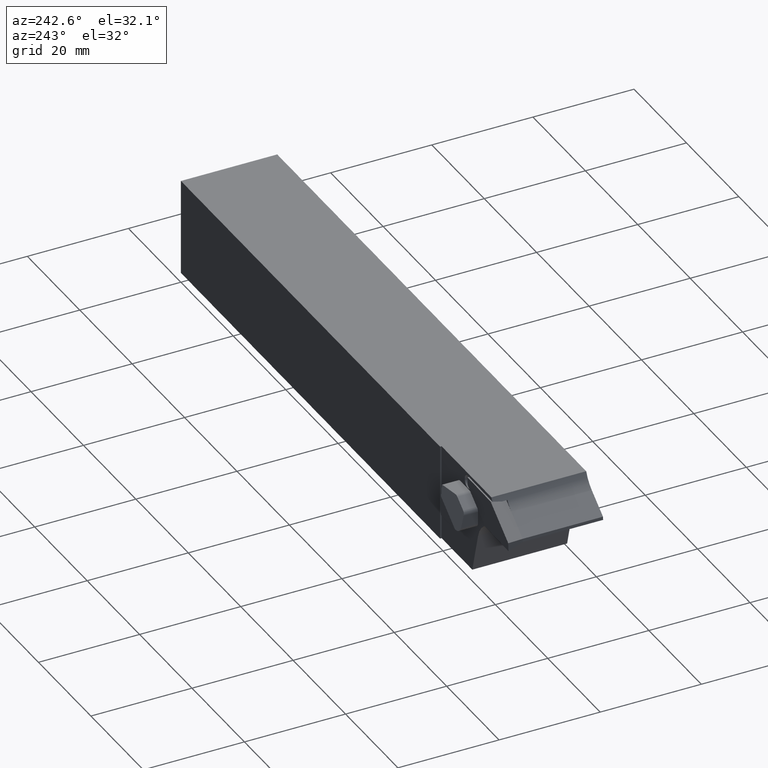
[diagram: clean part render]
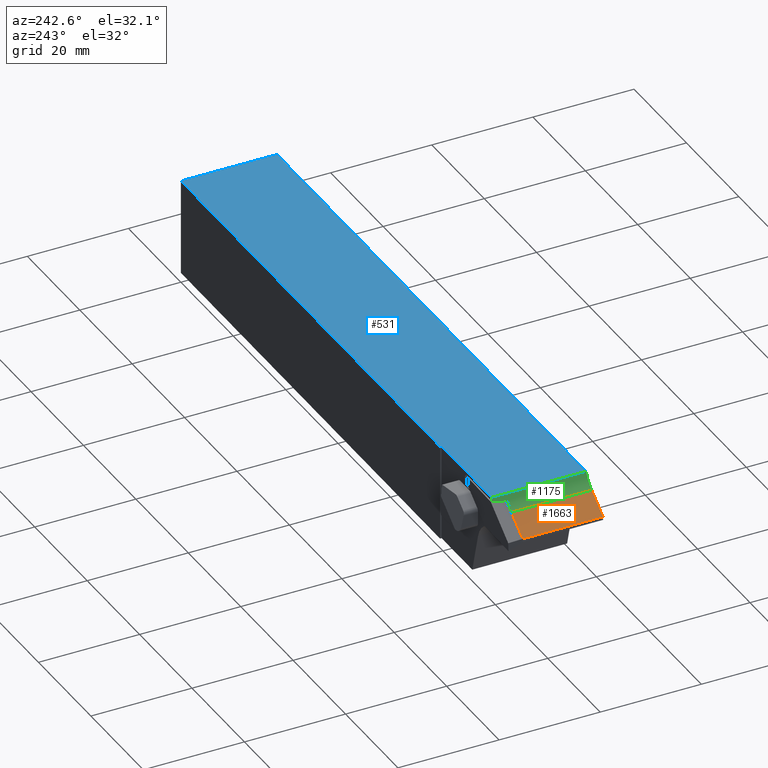
[diagram: same view with three faces highlighted in distinct colors, each labeled with its STEP entity id]
A machine part, auxiliary view with three faces highlighted in distinct colors.
Their STEP definitions:

[orange] entity #1663 — the highlighted planar face has unit normal (0.5878, 0, -0.809).
#26 = DIRECTION ( 'NONE',  ( 0.8090169943749472300, 2.366582715663036100E-030, 0.5877852522924733600 ) ) ;
#90 = FACE_OUTER_BOUND ( 'NONE', #1413, .T. ) ;
#155 = CARTESIAN_POINT ( 'NONE',  ( -124.3126031752604600, 159.8378328572430000, -24.91331827457312500 ) ) ;
#201 = VECTOR ( 'NONE', #262, 1000.000000000000000 ) ;
#249 = VERTEX_POINT ( 'NONE', #347 ) ;
#262 = DIRECTION ( 'NONE',  ( -2.482138512326289500E-030, -1.000000000000000000, 0.0000000000000000000 ) ) ;
#270 = LINE ( 'NONE', #658, #390 ) ;
#275 = CARTESIAN_POINT ( 'NONE',  ( -124.3126031752604600, -19.04999999999997900, -24.91331827457312200 ) ) ;
#307 = VERTEX_POINT ( 'NONE', #1514 ) ;
#347 = CARTESIAN_POINT ( 'NONE',  ( -120.0139484791831400, -3.180000000001002000, -21.79016282466297500 ) ) ;
#358 = EDGE_CURVE ( 'NONE', #307, #249, #669, .T. ) ;
#390 = VECTOR ( 'NONE', #494, 1000.000000000000100 ) ;
#456 = VECTOR ( 'NONE', #722, 1000.000000000000000 ) ;
#494 = DIRECTION ( 'NONE',  ( 0.8090169943749472300, 2.366582715663036100E-030, 0.5877852522924733600 ) ) ;
#540 = LINE ( 'NONE', #1088, #201 ) ;
#542 = CARTESIAN_POINT ( 'NONE',  ( -124.3126031752604600, -3.179999999999983300, -24.91331827457311500 ) ) ;
#578 = VERTEX_POINT ( 'NONE', #275 ) ;
#657 = EDGE_CURVE ( 'NONE', #578, #1080, #270, .T. ) ;
#658 = CARTESIAN_POINT ( 'NONE',  ( -49.21958788119678700, -19.04999999999996900, 29.64495089272115200 ) ) ;
#669 = LINE ( 'NONE', #542, #1301 ) ;
#678 = EDGE_CURVE ( 'NONE', #249, #1080, #540, .T. ) ;
#722 = DIRECTION ( 'NONE',  ( -2.482138512326289500E-030, -1.000000000000000000, 0.0000000000000000000 ) ) ;
#743 = CARTESIAN_POINT ( 'NONE',  ( -120.0139484791831400, -19.04999999999997900, -21.79016282466294600 ) ) ;
#832 = EDGE_CURVE ( 'NONE', #307, #578, #928, .T. ) ;
#874 = ORIENTED_EDGE ( 'NONE', *, *, #832, .T. ) ;
#921 = PLANE ( 'NONE',  #1296 ) ;
#928 = LINE ( 'NONE', #1489, #456 ) ;
#1080 = VERTEX_POINT ( 'NONE', #743 ) ;
#1088 = CARTESIAN_POINT ( 'NONE',  ( -120.0139484791831400, 159.8378328572430000, -21.79016282466295400 ) ) ;
#1283 = DIRECTION ( 'NONE',  ( 0.8090169943749472300, 2.366582715663036100E-030, 0.5877852522924733600 ) ) ;
#1296 = AXIS2_PLACEMENT_3D ( 'NONE', #155, #1525, #26 ) ;
#1301 = VECTOR ( 'NONE', #1283, 1000.000000000000100 ) ;
#1413 = EDGE_LOOP ( 'NONE', ( #874, #1441, #1646, #1497 ) ) ;
#1441 = ORIENTED_EDGE ( 'NONE', *, *, #657, .T. ) ;
#1489 = CARTESIAN_POINT ( 'NONE',  ( -124.3126031752604600, 159.8378328572430000, -24.91331827457312500 ) ) ;
#1497 = ORIENTED_EDGE ( 'NONE', *, *, #358, .F. ) ;
#1514 = CARTESIAN_POINT ( 'NONE',  ( -124.3126031752604600, -3.179999999999983300, -24.91331827457311500 ) ) ;
#1525 = DIRECTION ( 'NONE',  ( 0.5877852522924733600, 2.366582715663034700E-030, -0.8090169943749472300 ) ) ;
#1646 = ORIENTED_EDGE ( 'NONE', *, *, #678, .F. ) ;
#1663 = ADVANCED_FACE ( 'NONE', ( #90 ), #921, .F. ) ;

[blue] entity #531 — the highlighted planar face has unit normal (0, -0, 1).
#29 = LINE ( 'NONE', #75, #938 ) ;
#38 = EDGE_CURVE ( 'NONE', #1641, #609, #927, .T. ) ;
#43 = CARTESIAN_POINT ( 'NONE',  ( 0.0000000000000000000, 0.0000000000000000000, -19.04999999999997900 ) ) ;
#53 = CARTESIAN_POINT ( 'NONE',  ( -117.9079823176353300, -0.2999999999999934400, -19.04999999999996500 ) ) ;
#75 = CARTESIAN_POINT ( 'NONE',  ( -98.90000000000002000, -0.2999999999999986000, -19.04999999999996900 ) ) ;
#83 = EDGE_CURVE ( 'NONE', #609, #1249, #705, .T. ) ;
#98 = VECTOR ( 'NONE', #1048, 1000.000000000000000 ) ;
#131 = DIRECTION ( 'NONE',  ( -1.000000000000000000, -2.482138512326286400E-030, 1.110223024625109200E-016 ) ) ;
#157 = LINE ( 'NONE', #421, #695 ) ;
#181 = EDGE_LOOP ( 'NONE', ( #314, #947, #801, #584, #651, #1304 ) ) ;
#185 = VECTOR ( 'NONE', #523, 1000.000000000000000 ) ;
#187 = VERTEX_POINT ( 'NONE', #829 ) ;
#227 = VECTOR ( 'NONE', #526, 1000.000000000000000 ) ;
#276 = FACE_OUTER_BOUND ( 'NONE', #181, .T. ) ;
#290 = EDGE_CURVE ( 'NONE', #989, #1249, #659, .T. ) ;
#314 = ORIENTED_EDGE ( 'NONE', *, *, #38, .T. ) ;
#421 = CARTESIAN_POINT ( 'NONE',  ( 0.0000000000000000000, -19.04999999999996900, -19.04999999999997900 ) ) ;
#523 = DIRECTION ( 'NONE',  ( -1.000000000000000000, -2.482138512326286400E-030, 1.110223024625109200E-016 ) ) ;
#526 = DIRECTION ( 'NONE',  ( -2.482138512326289500E-030, -1.000000000000000000, 0.0000000000000000000 ) ) ;
#531 = ADVANCED_FACE ( 'NONE', ( #276 ), #1024, .T. ) ;
#564 = DIRECTION ( 'NONE',  ( -1.000000000000000000, -2.482138512326286400E-030, 1.110223024625109200E-016 ) ) ;
#584 = ORIENTED_EDGE ( 'NONE', *, *, #1011, .T. ) ;
#609 = VERTEX_POINT ( 'NONE', #53 ) ;
#651 = ORIENTED_EDGE ( 'NONE', *, *, #1403, .T. ) ;
#659 = LINE ( 'NONE', #1201, #828 ) ;
#685 = DIRECTION ( 'NONE',  ( 2.482138512326290200E-030, 1.000000000000000000, 0.0000000000000000000 ) ) ;
#695 = VECTOR ( 'NONE', #685, 1000.000000000000000 ) ;
#705 = LINE ( 'NONE', #775, #227 ) ;
#759 = EDGE_CURVE ( 'NONE', #1641, #1149, #29, .T. ) ;
#775 = CARTESIAN_POINT ( 'NONE',  ( -117.9079823176353300, 159.8378328572429200, -19.04999999999994700 ) ) ;
#779 = CARTESIAN_POINT ( 'NONE',  ( 0.0000000000000000000, -19.04999999999996900, -19.04999999999997900 ) ) ;
#801 = ORIENTED_EDGE ( 'NONE', *, *, #290, .F. ) ;
#828 = VECTOR ( 'NONE', #131, 1000.000000000000000 ) ;
#829 = CARTESIAN_POINT ( 'NONE',  ( 0.0000000000000000000, 0.0000000000000000000, -19.04999999999997900 ) ) ;
#869 = CARTESIAN_POINT ( 'NONE',  ( -98.90000000000002000, -0.2999999999999986000, -19.04999999999996900 ) ) ;
#927 = LINE ( 'NONE', #1495, #185 ) ;
#931 = CARTESIAN_POINT ( 'NONE',  ( -98.90000000000002000, 0.0000000000000000000, -19.04999999999997900 ) ) ;
#938 = VECTOR ( 'NONE', #961, 1000.000000000000000 ) ;
#947 = ORIENTED_EDGE ( 'NONE', *, *, #83, .T. ) ;
#961 = DIRECTION ( 'NONE',  ( 2.482138512326289500E-030, 1.000000000000000000, 0.0000000000000000000 ) ) ;
#989 = VERTEX_POINT ( 'NONE', #1092 ) ;
#1011 = EDGE_CURVE ( 'NONE', #989, #187, #157, .T. ) ;
#1024 = PLANE ( 'NONE',  #1106 ) ;
#1048 = DIRECTION ( 'NONE',  ( -1.000000000000000000, -2.482138512326286400E-030, 1.110223024625109200E-016 ) ) ;
#1092 = CARTESIAN_POINT ( 'NONE',  ( 0.0000000000000000000, -19.04999999999996900, -19.04999999999997900 ) ) ;
#1106 = AXIS2_PLACEMENT_3D ( 'NONE', #779, #1144, #564 ) ;
#1144 = DIRECTION ( 'NONE',  ( 1.110223024625109200E-016, -2.391971497427876300E-059, 1.000000000000000000 ) ) ;
#1149 = VERTEX_POINT ( 'NONE', #931 ) ;
#1201 = CARTESIAN_POINT ( 'NONE',  ( 0.0000000000000000000, -19.04999999999996900, -19.04999999999997900 ) ) ;
#1249 = VERTEX_POINT ( 'NONE', #1408 ) ;
#1304 = ORIENTED_EDGE ( 'NONE', *, *, #759, .F. ) ;
#1403 = EDGE_CURVE ( 'NONE', #187, #1149, #1436, .T. ) ;
#1408 = CARTESIAN_POINT ( 'NONE',  ( -117.9079823176353300, -19.04999999999997900, -19.04999999999996500 ) ) ;
#1436 = LINE ( 'NONE', #43, #98 ) ;
#1495 = CARTESIAN_POINT ( 'NONE',  ( -6.938893903907228400E-015, -0.2999999999999986000, -19.04999999999997900 ) ) ;
#1641 = VERTEX_POINT ( 'NONE', #869 ) ;

[green] entity #1175 — the highlighted cylindrical surface (edge-blend (fillet) strip) has radius 6.1 mm, axis along (-0, -1, 0).
#2 = DIRECTION ( 'NONE',  ( -2.482138512326289500E-030, -1.000000000000000000, 0.0000000000000000000 ) ) ;
#23 = CARTESIAN_POINT ( 'NONE',  ( -118.4503871997634400, -2.098799999999996200, -20.12582736600083400 ) ) ;
#53 = CARTESIAN_POINT ( 'NONE',  ( -117.9079823176353300, -0.2999999999999934400, -19.04999999999996500 ) ) ;
#57 = ORIENTED_EDGE ( 'NONE', *, *, #1560, .F. ) ;
#83 = EDGE_CURVE ( 'NONE', #609, #1249, #705, .T. ) ;
#142 = AXIS2_PLACEMENT_3D ( 'NONE', #1126, #784, #1300 ) ;
#145 = AXIS2_PLACEMENT_3D ( 'NONE', #768, #459, #315 ) ;
#156 = EDGE_CURVE ( 'NONE', #796, #1578, #1128, .T. ) ;
#169 =( BOUNDED_CURVE ( )  B_SPLINE_CURVE ( 3, ( #915, #795, #1667, #639 ),
 .UNSPECIFIED., .F., .F. ) 
 B_SPLINE_CURVE_WITH_KNOTS ( ( 4, 4 ),
 ( 0.9874437603678717400, 1.054680931260566700 ),
 .UNSPECIFIED. ) 
 CURVE ( )  GEOMETRIC_REPRESENTATION_ITEM ( )  RATIONAL_B_SPLINE_CURVE ( ( 1.000000000000000000, 0.9996232990521096700, 0.9996232990521096700, 1.000000000000000000 ) ) 
 REPRESENTATION_ITEM ( '' )  );
#186 = DIRECTION ( 'NONE',  ( 1.547032083494073900E-013, 0.0000000000000000000, 1.000000000000000000 ) ) ;
#201 = VECTOR ( 'NONE', #262, 1000.000000000000000 ) ;
#224 = VERTEX_POINT ( 'NONE', #748 ) ;
#226 = CARTESIAN_POINT ( 'NONE',  ( -123.5994385181671800, -3.179999999999983300, -16.85515915897577700 ) ) ;
#227 = VECTOR ( 'NONE', #526, 1000.000000000000000 ) ;
#240 = CYLINDRICAL_SURFACE ( 'NONE', #145, 6.099999999999987200 ) ;
#249 = VERTEX_POINT ( 'NONE', #347 ) ;
#262 = DIRECTION ( 'NONE',  ( -2.482138512326289500E-030, -1.000000000000000000, 0.0000000000000000000 ) ) ;
#300 = ORIENTED_EDGE ( 'NONE', *, *, #499, .F. ) ;
#315 = DIRECTION ( 'NONE',  ( 0.0000000000000000000, 0.0000000000000000000, 1.000000000000000000 ) ) ;
#347 = CARTESIAN_POINT ( 'NONE',  ( -120.0139484791831400, -3.180000000001002000, -21.79016282466297500 ) ) ;
#369 = ORIENTED_EDGE ( 'NONE', *, *, #1624, .T. ) ;
#459 = DIRECTION ( 'NONE',  ( -2.482138512326289500E-030, -1.000000000000000000, 0.0000000000000000000 ) ) ;
#466 = EDGE_CURVE ( 'NONE', #1080, #1249, #467, .T. ) ;
#467 = CIRCLE ( 'NONE', #1593, 6.099999999999987200 ) ;
#486 = CARTESIAN_POINT ( 'NONE',  ( -123.5994385181671800, -19.04999999999999000, -16.85515915897577700 ) ) ;
#499 = EDGE_CURVE ( 'NONE', #1578, #1231, #935, .T. ) ;
#526 = DIRECTION ( 'NONE',  ( -2.482138512326289500E-030, -1.000000000000000000, 0.0000000000000000000 ) ) ;
#540 = LINE ( 'NONE', #1088, #201 ) ;
#548 = AXIS2_PLACEMENT_3D ( 'NONE', #1218, #839, #1349 ) ;
#573 = ORIENTED_EDGE ( 'NONE', *, *, #83, .F. ) ;
#609 = VERTEX_POINT ( 'NONE', #53 ) ;
#639 = CARTESIAN_POINT ( 'NONE',  ( -118.2422770087838700, -0.2999999999999986000, -19.77249022732953800 ) ) ;
#656 = ORIENTED_EDGE ( 'NONE', *, *, #466, .T. ) ;
#678 = EDGE_CURVE ( 'NONE', #249, #1080, #540, .T. ) ;
#705 = LINE ( 'NONE', #775, #227 ) ;
#743 = CARTESIAN_POINT ( 'NONE',  ( -120.0139484791831400, -19.04999999999997900, -21.79016282466294600 ) ) ;
#748 = CARTESIAN_POINT ( 'NONE',  ( -118.2422770087838700, -0.2999999999999986000, -19.77249022732953800 ) ) ;
#768 = CARTESIAN_POINT ( 'NONE',  ( -123.5994385181671800, 159.8378328572430000, -16.85515915897577700 ) ) ;
#775 = CARTESIAN_POINT ( 'NONE',  ( -117.9079823176353300, 159.8378328572429200, -19.04999999999994700 ) ) ;
#781 = VECTOR ( 'NONE', #1393, 1000.000000000000000 ) ;
#784 = DIRECTION ( 'NONE',  ( -2.482138512326289500E-030, -1.000000000000000000, -0.0000000000000000000 ) ) ;
#795 = CARTESIAN_POINT ( 'NONE',  ( -118.3770698959435900, -1.511666721175597400, -20.01040307469411100 ) ) ;
#796 = VERTEX_POINT ( 'NONE', #1446 ) ;
#799 = EDGE_LOOP ( 'NONE', ( #369, #57, #300, #1460, #918, #1316, #656, #573 ) ) ;
#839 = DIRECTION ( 'NONE',  ( 2.482138512326289500E-030, 1.000000000000000000, -0.0000000000000000000 ) ) ;
#915 = CARTESIAN_POINT ( 'NONE',  ( -118.4503871997634400, -2.098799999999996200, -20.12582736600083400 ) ) ;
#918 = ORIENTED_EDGE ( 'NONE', *, *, #1607, .F. ) ;
#935 = LINE ( 'NONE', #1643, #781 ) ;
#942 = DIRECTION ( 'NONE',  ( -2.482138512326289500E-030, -1.000000000000000000, -0.0000000000000000000 ) ) ;
#1035 = AXIS2_PLACEMENT_3D ( 'NONE', #226, #942, #186 ) ;
#1036 = FACE_OUTER_BOUND ( 'NONE', #799, .T. ) ;
#1043 = CIRCLE ( 'NONE', #1035, 6.099999999999987200 ) ;
#1080 = VERTEX_POINT ( 'NONE', #743 ) ;
#1088 = CARTESIAN_POINT ( 'NONE',  ( -120.0139484791831400, 159.8378328572430000, -21.79016282466295400 ) ) ;
#1098 = DIRECTION ( 'NONE',  ( 0.0000000000000000000, 0.0000000000000000000, -1.000000000000000000 ) ) ;
#1126 = CARTESIAN_POINT ( 'NONE',  ( -123.5994385181671800, -3.179999999999983300, -16.85515915897577700 ) ) ;
#1128 = CIRCLE ( 'NONE', #142, 6.099999999999987200 ) ;
#1150 = CARTESIAN_POINT ( 'NONE',  ( -118.4503871997634100, -3.179999999999983300, -20.12582736600083100 ) ) ;
#1175 = ADVANCED_FACE ( 'NONE', ( #1036 ), #240, .F. ) ;
#1218 = CARTESIAN_POINT ( 'NONE',  ( -123.5994385181671800, -0.2999999999999934400, -16.85515915897577700 ) ) ;
#1231 = VERTEX_POINT ( 'NONE', #23 ) ;
#1249 = VERTEX_POINT ( 'NONE', #1408 ) ;
#1300 = DIRECTION ( 'NONE',  ( -2.275047181608932200E-015, 0.0000000000000000000, 1.000000000000000000 ) ) ;
#1316 = ORIENTED_EDGE ( 'NONE', *, *, #678, .T. ) ;
#1349 = DIRECTION ( 'NONE',  ( -9.100188726435728700E-015, 0.0000000000000000000, -1.000000000000000000 ) ) ;
#1393 = DIRECTION ( 'NONE',  ( 2.482138512326289500E-030, 1.000000000000000000, -0.0000000000000000000 ) ) ;
#1408 = CARTESIAN_POINT ( 'NONE',  ( -117.9079823176353300, -19.04999999999997900, -19.04999999999996500 ) ) ;
#1433 = CIRCLE ( 'NONE', #548, 6.099999999999987200 ) ;
#1446 = CARTESIAN_POINT ( 'NONE',  ( -119.8560372168709700, -3.179999999999983300, -21.67148002634475600 ) ) ;
#1460 = ORIENTED_EDGE ( 'NONE', *, *, #156, .F. ) ;
#1560 = EDGE_CURVE ( 'NONE', #1231, #224, #169, .T. ) ;
#1578 = VERTEX_POINT ( 'NONE', #1150 ) ;
#1593 = AXIS2_PLACEMENT_3D ( 'NONE', #486, #2, #1098 ) ;
#1607 = EDGE_CURVE ( 'NONE', #249, #796, #1043, .T. ) ;
#1624 = EDGE_CURVE ( 'NONE', #609, #224, #1433, .T. ) ;
#1643 = CARTESIAN_POINT ( 'NONE',  ( -118.4503871997634100, 159.8378328572430000, -20.12582736600083100 ) ) ;
#1667 = CARTESIAN_POINT ( 'NONE',  ( -118.3076736906674600, -0.9118407661697476300, -19.89257964427241600 ) ) ;